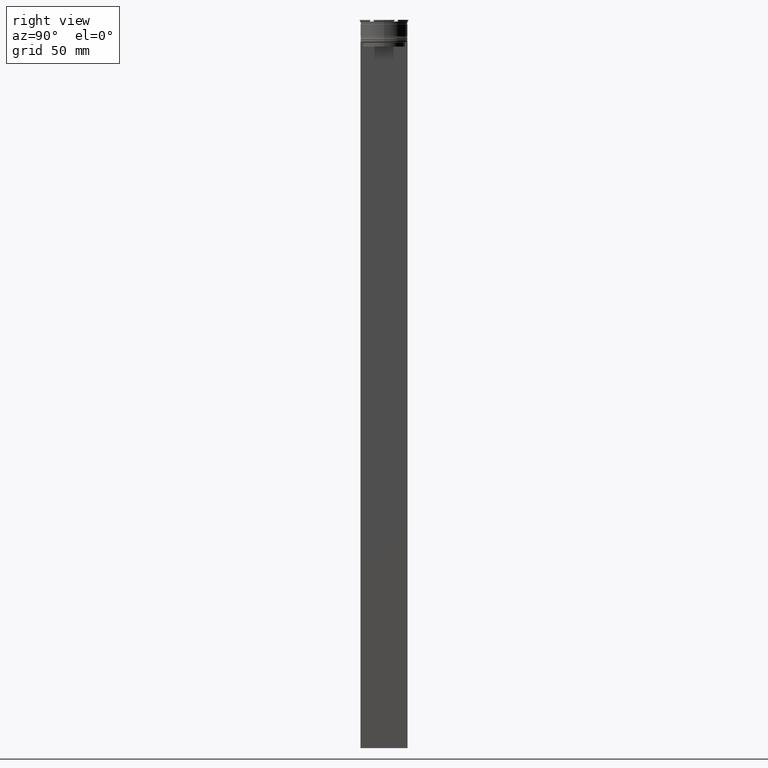
[diagram: clean part render]
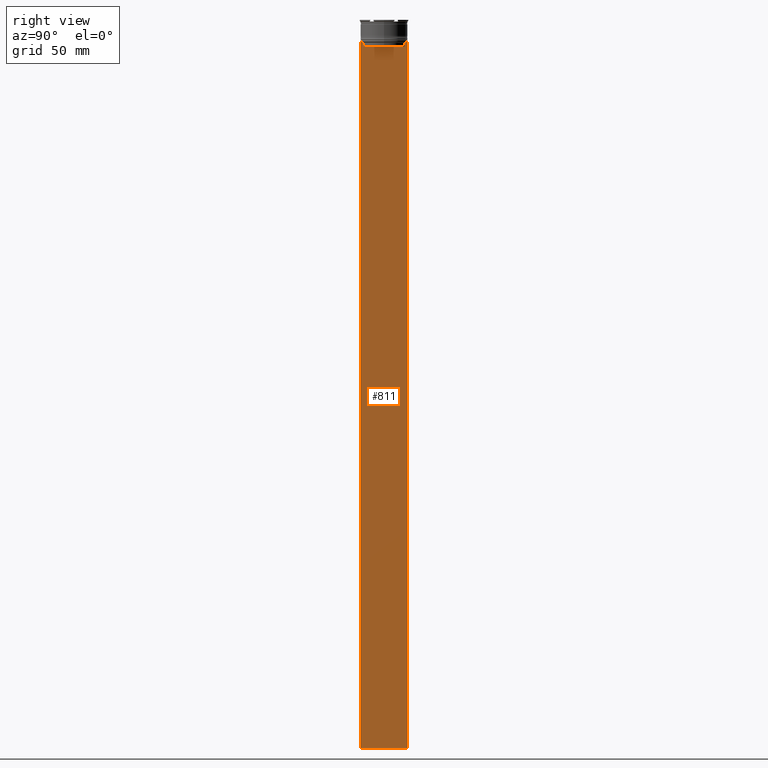
[diagram: same view with one face highlighted and labeled with its STEP entity id]
A machine part, right view. The second image highlights one B-rep face of the part: STEP entity #811.
In plain terms, the highlighted planar face has unit normal (-1, 0, 0).
Its self-contained STEP definition (entity closure, byte-faithful):
#50 = CARTESIAN_POINT ( 'NONE',  ( 0.5000000000000001110, 13.89100428334828230, -14.00000000000000178 ) ) ;
#103 = EDGE_LOOP ( 'NONE', ( #304, #1330, #926, #544, #2284, #2662, #351, #581, #1339, #2848, #1151, #489 ) ) ;
#117 = VECTOR ( 'NONE', #1088, 1000.000000000000000 ) ;
#140 = DIRECTION ( 'NONE',  ( 0.000000000000000000, -1.000000000000000000, 0.000000000000000000 ) ) ;
#141 = VERTEX_POINT ( 'NONE', #1081 ) ;
#158 = VECTOR ( 'NONE', #1266, 1000.000000000000000 ) ;
#169 = DIRECTION ( 'NONE',  ( 0.000000000000000000, -1.000000000000000000, 0.000000000000000000 ) ) ;
#193 = CARTESIAN_POINT ( 'NONE',  ( 0.5000000000000001110, -13.72422766745777167, -14.16666868242427135 ) ) ;
#196 = LINE ( 'NONE', #1279, #117 ) ;
#249 = LINE ( 'NONE', #2234, #2352 ) ;
#279 = EDGE_CURVE ( 'NONE', #591, #141, #2089, .T. ) ;
#299 = EDGE_CURVE ( 'NONE', #2529, #1985, #2784, .T. ) ;
#304 = ORIENTED_EDGE ( 'NONE', *, *, #974, .T. ) ;
#320 = EDGE_CURVE ( 'NONE', #1751, #2497, #2327, .T. ) ;
#348 = DIRECTION ( 'NONE',  ( 0.000000000000000000, 0.000000000000000000, -1.000000000000000000 ) ) ;
#351 = ORIENTED_EDGE ( 'NONE', *, *, #1708, .T. ) ;
#365 = CARTESIAN_POINT ( 'NONE',  ( 0.5000000000000001110, -15.00000000000000355, -14.00000000000000178 ) ) ;
#403 = CARTESIAN_POINT ( 'NONE',  ( 0.5000000000000001110, -15.00000000000000355, -14.00000000000000178 ) ) ;
#489 = ORIENTED_EDGE ( 'NONE', *, *, #2852, .T. ) ;
#511 = VERTEX_POINT ( 'NONE', #2624 ) ;
#544 = ORIENTED_EDGE ( 'NONE', *, *, #2643, .T. ) ;
#581 = ORIENTED_EDGE ( 'NONE', *, *, #299, .T. ) ;
#591 = VERTEX_POINT ( 'NONE', #1650 ) ;
#594 = VECTOR ( 'NONE', #2651, 1000.000000000000000 ) ;
#655 = VERTEX_POINT ( 'NONE', #1190 ) ;
#808 = VECTOR ( 'NONE', #140, 1000.000000000000000 ) ;
#811 = ADVANCED_FACE ( 'NONE', ( #1665 ), #2779, .F. ) ;
#820 = DIRECTION ( 'NONE',  ( 0.000000000000000000, 0.000000000000000000, 1.000000000000000000 ) ) ;
#857 = CARTESIAN_POINT ( 'NONE',  ( 0.5000000000000001110, -13.55744911241550099, -14.33333542435722663 ) ) ;
#924 = CARTESIAN_POINT ( 'NONE',  ( 0.5000000000000001110, 13.39066839257847263, -14.49999999999999822 ) ) ;
#926 = ORIENTED_EDGE ( 'NONE', *, *, #1745, .T. ) ;
#974 = EDGE_CURVE ( 'NONE', #655, #2647, #2224, .T. ) ;
#976 = CARTESIAN_POINT ( 'NONE',  ( 0.5000000000000001110, 13.39066839257847263, -14.49999999999999822 ) ) ;
#1057 = VERTEX_POINT ( 'NONE', #1343 ) ;
#1059 = CARTESIAN_POINT ( 'NONE',  ( 0.5000000000000001110, -13.89100428334828230, -14.00000000000000178 ) ) ;
#1068 = VECTOR ( 'NONE', #1632, 1000.000000000000000 ) ;
#1078 = LINE ( 'NONE', #403, #2585 ) ;
#1081 = CARTESIAN_POINT ( 'NONE',  ( 0.5000000000000001110, 14.99999999999999645, -464.0000000000000000 ) ) ;
#1088 = DIRECTION ( 'NONE',  ( 0.000000000000000000, 0.000000000000000000, -1.000000000000000000 ) ) ;
#1126 = CARTESIAN_POINT ( 'NONE',  ( 0.5000000000000001110, -15.00000000000000355, -14.00000000000000178 ) ) ;
#1132 = B_SPLINE_CURVE_WITH_KNOTS ( 'NONE', 3,
 ( #2809, #857, #193, #1059 ),
 .UNSPECIFIED., .F., .F.,
 ( 4, 4 ),
 ( 0.06160226316123722928, 0.06231007364084064498 ),
 .UNSPECIFIED. ) ;
#1147 = CARTESIAN_POINT ( 'NONE',  ( 0.5000000000000001110, 14.99999999999999645, 16.01666203960726165 ) ) ;
#1151 = ORIENTED_EDGE ( 'NONE', *, *, #1914, .F. ) ;
#1182 = CARTESIAN_POINT ( 'NONE',  ( 0.5000000000000001110, 13.55744911232272543, -14.33333542444994002 ) ) ;
#1190 = CARTESIAN_POINT ( 'NONE',  ( 0.5000000000000001110, 14.89160837518903513, -14.00000000000000178 ) ) ;
#1208 = DIRECTION ( 'NONE',  ( 0.000000000000000000, 1.000000000000000000, 0.000000000000000000 ) ) ;
#1210 = EDGE_CURVE ( 'NONE', #2647, #2197, #1469, .T. ) ;
#1256 = LINE ( 'NONE', #2166, #1889 ) ;
#1266 = DIRECTION ( 'NONE',  ( -0.000000000000000000, -0.000000000000000000, 1.000000000000000000 ) ) ;
#1279 = CARTESIAN_POINT ( 'NONE',  ( 0.5000000000000001110, 13.39066839257847263, 0.000000000000000000 ) ) ;
#1318 = EDGE_CURVE ( 'NONE', #1985, #591, #1256, .T. ) ;
#1330 = ORIENTED_EDGE ( 'NONE', *, *, #1210, .T. ) ;
#1332 = CARTESIAN_POINT ( 'NONE',  ( 0.5000000000000001110, -14.89160837518903513, -14.00000000000000178 ) ) ;
#1339 = ORIENTED_EDGE ( 'NONE', *, *, #1318, .T. ) ;
#1343 = CARTESIAN_POINT ( 'NONE',  ( 0.5000000000000001110, 13.39066839257847086, -17.00000000000000000 ) ) ;
#1360 = LINE ( 'NONE', #1147, #594 ) ;
#1398 = CARTESIAN_POINT ( 'NONE',  ( 0.5000000000000001110, 13.72422766736833744, -14.16666868251365052 ) ) ;
#1411 = VECTOR ( 'NONE', #1208, 1000.000000000000000 ) ;
#1469 = B_SPLINE_CURVE_WITH_KNOTS ( 'NONE', 3,
 ( #2250, #1398, #1182, #976 ),
 .UNSPECIFIED., .F., .F.,
 ( 4, 4 ),
 ( 0.02359665025569774102, 0.02430399458637444096 ),
 .UNSPECIFIED. ) ;
#1632 = DIRECTION ( 'NONE',  ( 0.000000000000000000, -1.000000000000000000, 0.000000000000000000 ) ) ;
#1650 = CARTESIAN_POINT ( 'NONE',  ( 0.5000000000000001110, -15.00000000000000355, -464.0000000000000000 ) ) ;
#1665 = FACE_OUTER_BOUND ( 'NONE', #103, .T. ) ;
#1682 = CARTESIAN_POINT ( 'NONE',  ( 0.5000000000000001110, -13.39066839257847263, 0.000000000000000000 ) ) ;
#1694 = AXIS2_PLACEMENT_3D ( 'NONE', #2341, #2810, #820 ) ;
#1708 = EDGE_CURVE ( 'NONE', #511, #2529, #1078, .T. ) ;
#1740 = CARTESIAN_POINT ( 'NONE',  ( 0.5000000000000001110, -13.39066839257847086, -17.00000000000000000 ) ) ;
#1745 = EDGE_CURVE ( 'NONE', #2197, #1057, #196, .T. ) ;
#1751 = VERTEX_POINT ( 'NONE', #1740 ) ;
#1792 = DIRECTION ( 'NONE',  ( 0.000000000000000000, -1.000000000000000000, 0.000000000000000000 ) ) ;
#1865 = CARTESIAN_POINT ( 'NONE',  ( 0.5000000000000001110, 14.99999999999999645, -14.00000000000000178 ) ) ;
#1889 = VECTOR ( 'NONE', #348, 1000.000000000000000 ) ;
#1914 = EDGE_CURVE ( 'NONE', #2077, #141, #1360, .T. ) ;
#1985 = VERTEX_POINT ( 'NONE', #2746 ) ;
#2077 = VERTEX_POINT ( 'NONE', #1865 ) ;
#2089 = LINE ( 'NONE', #2304, #1411 ) ;
#2166 = CARTESIAN_POINT ( 'NONE',  ( 0.5000000000000001110, -15.00000000000000355, 16.01666203960726165 ) ) ;
#2197 = VERTEX_POINT ( 'NONE', #924 ) ;
#2224 = LINE ( 'NONE', #1126, #2670 ) ;
#2234 = CARTESIAN_POINT ( 'NONE',  ( 0.5000000000000001110, 13.40000000000000391, -17.00000000000000000 ) ) ;
#2235 = DIRECTION ( 'NONE',  ( 0.000000000000000000, -1.000000000000000000, 0.000000000000000000 ) ) ;
#2250 = CARTESIAN_POINT ( 'NONE',  ( 0.5000000000000001110, 13.89100428334828230, -14.00000000000000178 ) ) ;
#2284 = ORIENTED_EDGE ( 'NONE', *, *, #320, .T. ) ;
#2304 = CARTESIAN_POINT ( 'NONE',  ( 0.5000000000000001110, -15.00000000000000355, -464.0000000000000000 ) ) ;
#2327 = LINE ( 'NONE', #1682, #158 ) ;
#2341 = CARTESIAN_POINT ( 'NONE',  ( 0.5000000000000001110, -15.00000000000000355, 16.01666203960726165 ) ) ;
#2351 = LINE ( 'NONE', #365, #1068 ) ;
#2352 = VECTOR ( 'NONE', #1792, 1000.000000000000000 ) ;
#2420 = CARTESIAN_POINT ( 'NONE',  ( 0.5000000000000001110, -13.39066839257847263, -14.49999999999999822 ) ) ;
#2466 = EDGE_CURVE ( 'NONE', #2497, #511, #1132, .T. ) ;
#2497 = VERTEX_POINT ( 'NONE', #2420 ) ;
#2529 = VERTEX_POINT ( 'NONE', #1332 ) ;
#2553 = CARTESIAN_POINT ( 'NONE',  ( 0.5000000000000001110, -15.00000000000000355, -14.00000000000000178 ) ) ;
#2585 = VECTOR ( 'NONE', #169, 1000.000000000000000 ) ;
#2624 = CARTESIAN_POINT ( 'NONE',  ( 0.5000000000000001110, -13.89100428334828230, -14.00000000000000178 ) ) ;
#2643 = EDGE_CURVE ( 'NONE', #1057, #1751, #249, .T. ) ;
#2647 = VERTEX_POINT ( 'NONE', #50 ) ;
#2651 = DIRECTION ( 'NONE',  ( 0.000000000000000000, 0.000000000000000000, -1.000000000000000000 ) ) ;
#2662 = ORIENTED_EDGE ( 'NONE', *, *, #2466, .T. ) ;
#2670 = VECTOR ( 'NONE', #2235, 1000.000000000000000 ) ;
#2746 = CARTESIAN_POINT ( 'NONE',  ( 0.5000000000000001110, -15.00000000000000355, -14.00000000000000178 ) ) ;
#2779 = PLANE ( 'NONE',  #1694 ) ;
#2784 = LINE ( 'NONE', #2553, #808 ) ;
#2809 = CARTESIAN_POINT ( 'NONE',  ( 0.5000000000000001110, -13.39066839257847263, -14.49999999999999822 ) ) ;
#2810 = DIRECTION ( 'NONE',  ( -1.000000000000000000, 0.000000000000000000, 0.000000000000000000 ) ) ;
#2848 = ORIENTED_EDGE ( 'NONE', *, *, #279, .T. ) ;
#2852 = EDGE_CURVE ( 'NONE', #2077, #655, #2351, .T. ) ;